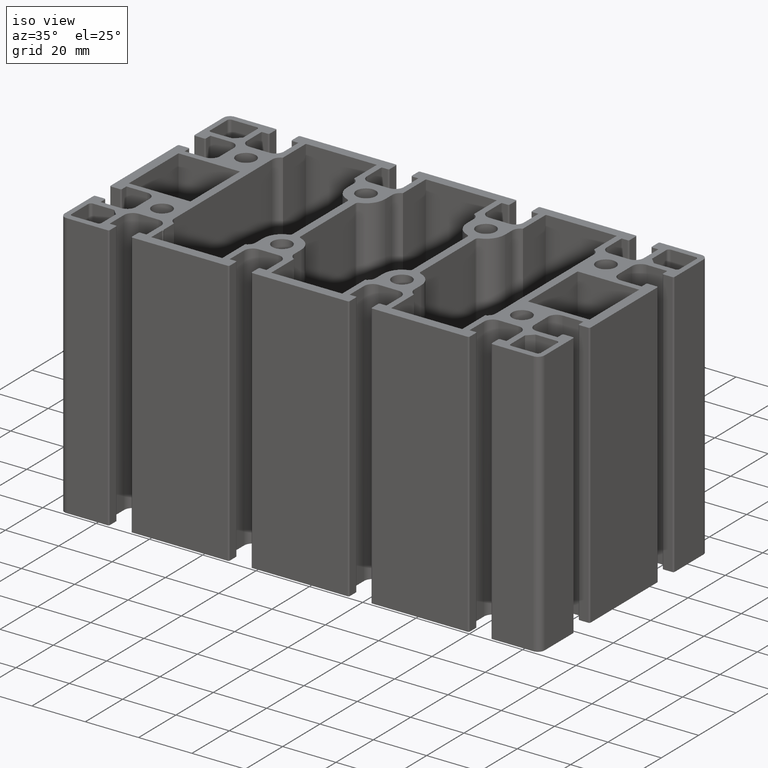
[diagram: clean part render]
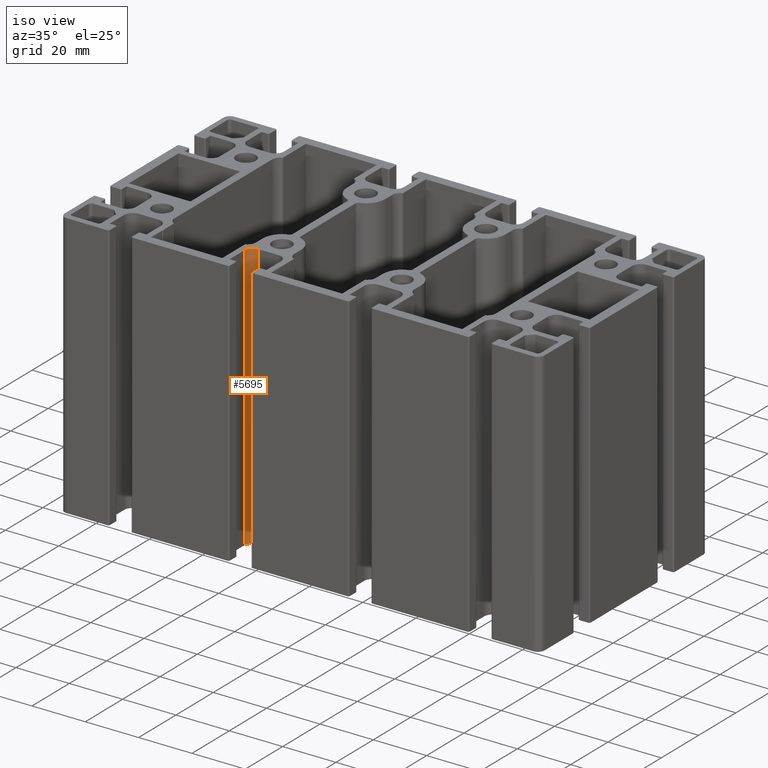
[diagram: same view with one face highlighted and labeled with its STEP entity id]
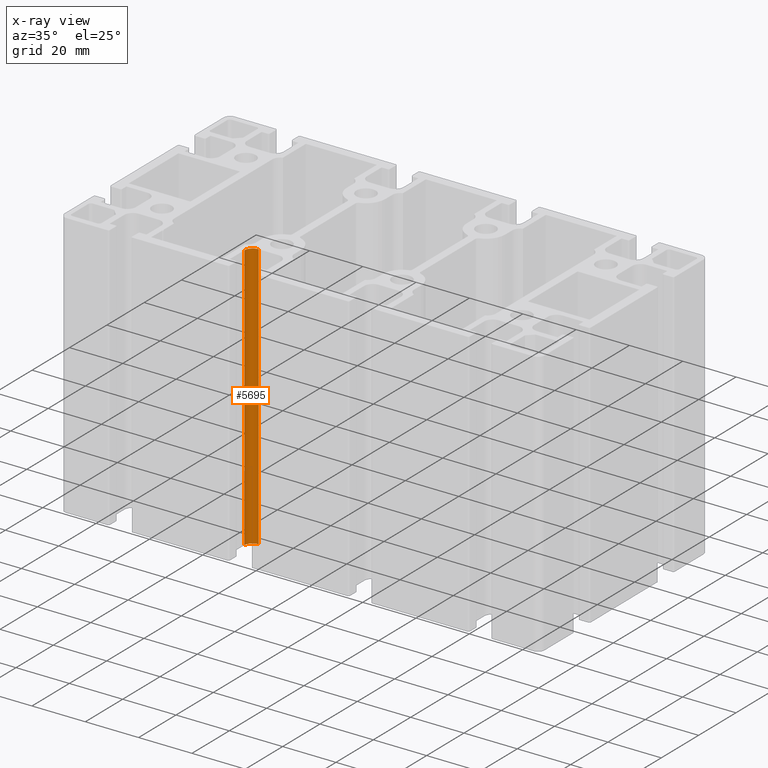
[diagram: x-ray of the same camera — body ghosted, the highlighted face saturated]
A machine part, iso view. The second image highlights one B-rep face of the part: STEP entity #5695.
The next image is the same camera in x-ray: the body ghosted, the highlighted face saturated — about 0% of this face is hidden behind the body in this view.
In plain terms, the highlighted cylindrical surface (edge-blend (fillet) strip) has radius 3.2 mm, axis along (0, 0, 1).
Its self-contained STEP definition (entity closure, byte-faithful):
#203=CIRCLE('',#6132,3.19999999999993);
#204=CIRCLE('',#6133,3.19999999999993);
#380=CYLINDRICAL_SURFACE('',#6131,3.19999999999993);
#592=FACE_OUTER_BOUND('',#884,.T.);
#884=EDGE_LOOP('',(#4304,#4305,#4306,#4307));
#1386=LINE('',#9018,#1986);
#1387=LINE('',#9024,#1987);
#1986=VECTOR('',#7313,100.);
#1987=VECTOR('',#7320,100.);
#2582=VERTEX_POINT('',#9014);
#2583=VERTEX_POINT('',#9016);
#2584=VERTEX_POINT('',#9020);
#2585=VERTEX_POINT('',#9022);
#3304=EDGE_CURVE('',#2583,#2582,#1386,.T.);
#3305=EDGE_CURVE('',#2582,#2584,#203,.T.);
#3306=EDGE_CURVE('',#2585,#2583,#204,.T.);
#3307=EDGE_CURVE('',#2585,#2584,#1387,.T.);
#4304=ORIENTED_EDGE('',*,*,#3305,.F.);
#4305=ORIENTED_EDGE('',*,*,#3304,.F.);
#4306=ORIENTED_EDGE('',*,*,#3306,.F.);
#4307=ORIENTED_EDGE('',*,*,#3307,.T.);
#5695=ADVANCED_FACE('',(#592),#380,.F.);
#6131=AXIS2_PLACEMENT_3D('',#9019,#7314,#7315);
#6132=AXIS2_PLACEMENT_3D('',#9021,#7316,#7317);
#6133=AXIS2_PLACEMENT_3D('',#9023,#7318,#7319);
#7313=DIRECTION('',(0.,0.,1.));
#7314=DIRECTION('center_axis',(0.,0.,1.));
#7315=DIRECTION('ref_axis',(0.,1.,0.));
#7316=DIRECTION('center_axis',(0.,0.,-1.));
#7317=DIRECTION('ref_axis',(0.,1.,0.));
#7318=DIRECTION('center_axis',(0.,0.,1.));
#7319=DIRECTION('ref_axis',(0.,1.,0.));
#7320=DIRECTION('',(0.,0.,1.));
#9014=CARTESIAN_POINT('',(-29.3999999999996,-32.8999999999998,100.));
#9016=CARTESIAN_POINT('',(-29.3999999999996,-32.8999999999998,0.));
#9018=CARTESIAN_POINT('',(-29.3999999999996,-32.8999999999998,0.));
#9019=CARTESIAN_POINT('Origin',(-26.1999999999999,-32.8999999999998,0.));
#9020=CARTESIAN_POINT('',(-26.1999999999999,-29.7,100.));
#9021=CARTESIAN_POINT('Origin',(-26.1999999999999,-32.8999999999998,100.));
#9022=CARTESIAN_POINT('',(-26.1999999999999,-29.7,0.));
#9023=CARTESIAN_POINT('Origin',(-26.1999999999999,-32.8999999999998,0.));
#9024=CARTESIAN_POINT('',(-26.1999999999999,-29.7,0.));